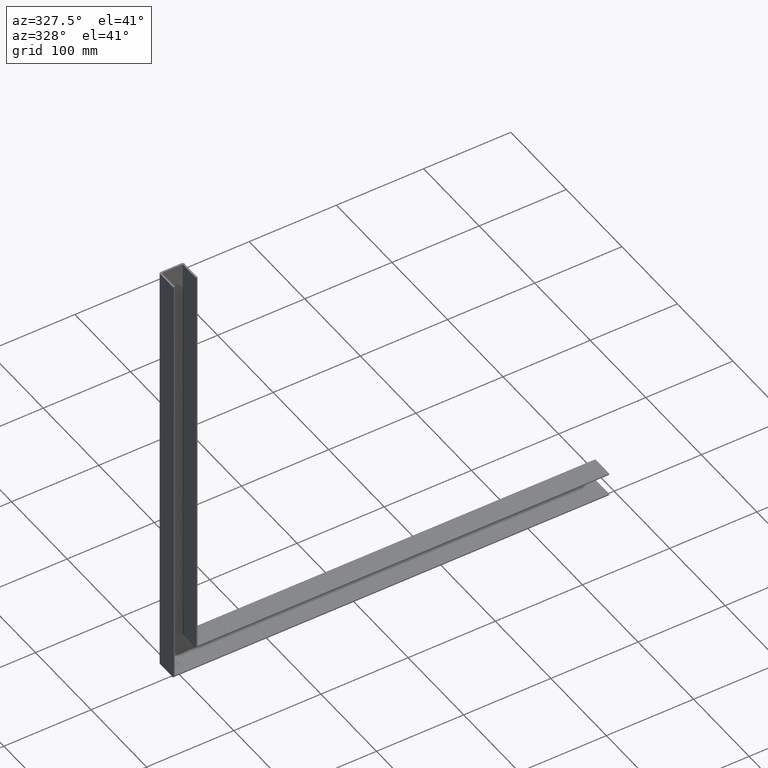
[diagram: clean part render]
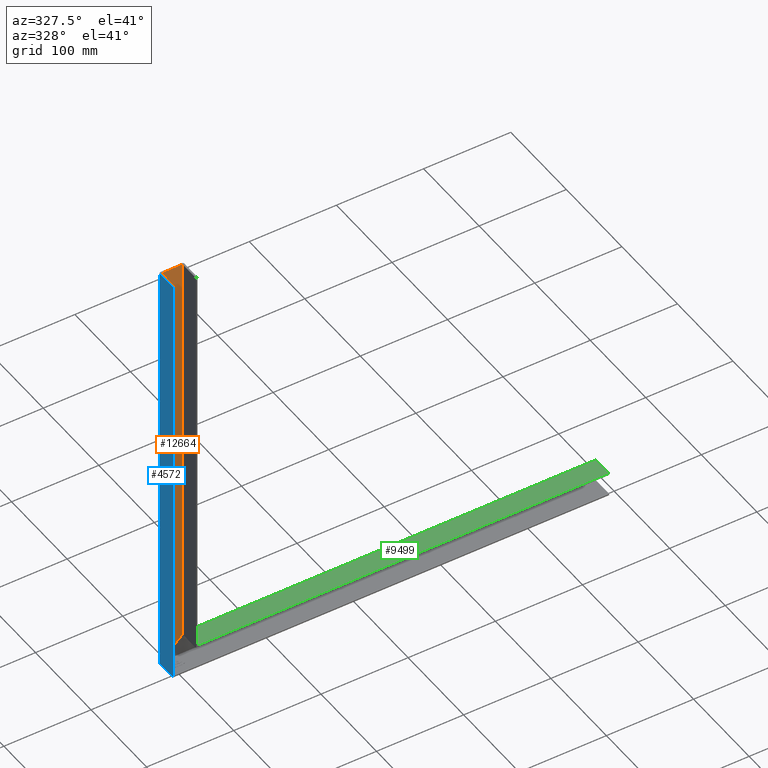
[diagram: same view with three faces highlighted in distinct colors, each labeled with its STEP entity id]
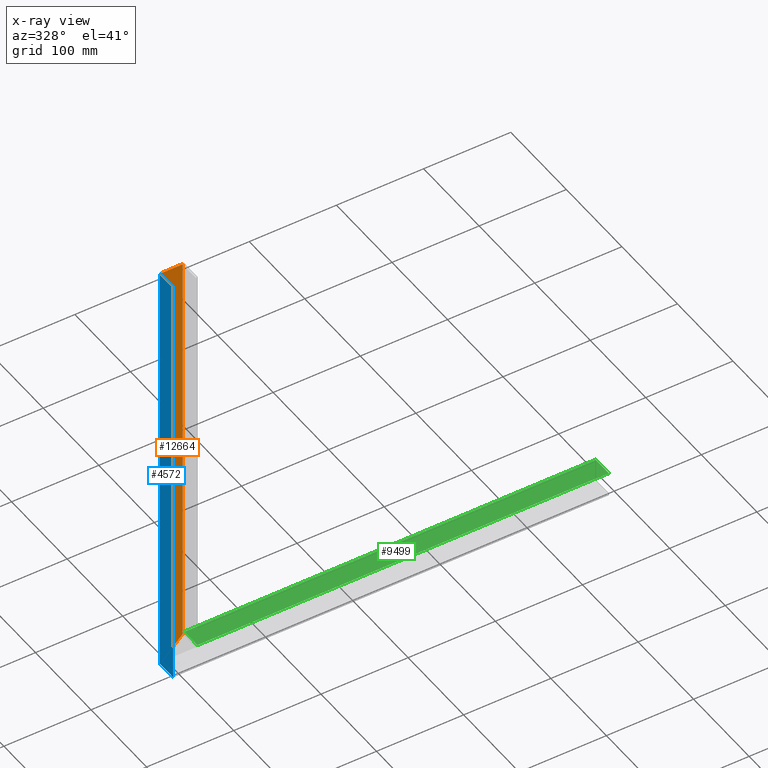
[diagram: x-ray of the same camera — body ghosted, the three highlighted faces saturated]
A machine part, auxiliary view with three faces highlighted in distinct colors.
The next image is the same camera in x-ray (body ghosted, the three faces saturated) — at least one of them is partly hidden behind the body in this view.
Their STEP definitions:

[orange] entity #12664 — the highlighted planar face has unit normal (-0, 1, 0).
#157 = DIRECTION ( 'NONE',  ( 0.000000000000000000, 0.000000000000000000, -1.000000000000000000 ) ) ;
#811 = CARTESIAN_POINT ( 'NONE',  ( -11.99999999999999822, 11.00000000000000000, 0.000000000000000000 ) ) ;
#1102 = VERTEX_POINT ( 'NONE', #2468 ) ;
#1846 = ORIENTED_EDGE ( 'NONE', *, *, #11872, .T. ) ;
#2468 = CARTESIAN_POINT ( 'NONE',  ( 12.00000000000000000, 11.00000000000000000, 0.000000000000000000 ) ) ;
#2851 = LINE ( 'NONE', #6671, #4793 ) ;
#2876 = EDGE_CURVE ( 'NONE', #15074, #7901, #13920, .T. ) ;
#2889 = FACE_OUTER_BOUND ( 'NONE', #11126, .T. ) ;
#3077 = ORIENTED_EDGE ( 'NONE', *, *, #15303, .F. ) ;
#3409 = EDGE_CURVE ( 'NONE', #9310, #1102, #9423, .T. ) ;
#3436 = DIRECTION ( 'NONE',  ( -0.000000000000000000, 1.000000000000000000, 0.000000000000000000 ) ) ;
#4767 = LINE ( 'NONE', #12376, #6870 ) ;
#4793 = VECTOR ( 'NONE', #13440, 1000.000000000000000 ) ;
#4894 = DIRECTION ( 'NONE',  ( 0.000000000000000000, -0.000000000000000000, 1.000000000000000000 ) ) ;
#5503 = DIRECTION ( 'NONE',  ( 1.000000000000000000, 0.000000000000000000, 0.000000000000000000 ) ) ;
#6671 = CARTESIAN_POINT ( 'NONE',  ( 12.00000000000000000, 11.00000000000000000, 0.000000000000000000 ) ) ;
#6870 = VECTOR ( 'NONE', #157, 1000.000000000000000 ) ;
#7252 = CARTESIAN_POINT ( 'NONE',  ( 236.9999999999999716, 11.00000000000000000, -248.9999999999999716 ) ) ;
#7344 = CARTESIAN_POINT ( 'NONE',  ( -11.99999999999999822, 11.00000000000000000, 0.000000000000000000 ) ) ;
#7901 = VERTEX_POINT ( 'NONE', #14173 ) ;
#7954 = VECTOR ( 'NONE', #9990, 1000.000000000000114 ) ;
#8900 = AXIS2_PLACEMENT_3D ( 'NONE', #811, #3436, #4894 ) ;
#9310 = VERTEX_POINT ( 'NONE', #7344 ) ;
#9423 = LINE ( 'NONE', #9655, #15620 ) ;
#9655 = CARTESIAN_POINT ( 'NONE',  ( -11.99999999999999822, 11.00000000000000000, 0.000000000000000000 ) ) ;
#9990 = DIRECTION ( 'NONE',  ( -0.7071067811865474617, 0.000000000000000000, -0.7071067811865474617 ) ) ;
#11126 = EDGE_LOOP ( 'NONE', ( #3077, #11685, #1846, #17403 ) ) ;
#11685 = ORIENTED_EDGE ( 'NONE', *, *, #3409, .F. ) ;
#11872 = EDGE_CURVE ( 'NONE', #9310, #7901, #4767, .T. ) ;
#12376 = CARTESIAN_POINT ( 'NONE',  ( -11.99999999999999822, 11.00000000000000000, 0.000000000000000000 ) ) ;
#12664 = ADVANCED_FACE ( 'NONE', ( #2889 ), #13030, .F. ) ;
#13030 = PLANE ( 'NONE',  #8900 ) ;
#13440 = DIRECTION ( 'NONE',  ( 0.000000000000000000, 0.000000000000000000, -1.000000000000000000 ) ) ;
#13881 = CARTESIAN_POINT ( 'NONE',  ( 12.00000000000000000, 11.00000000000000000, -473.9999999999999432 ) ) ;
#13920 = LINE ( 'NONE', #7252, #7954 ) ;
#14173 = CARTESIAN_POINT ( 'NONE',  ( -12.00000000000002132, 11.00000000000000000, -497.9999999999999432 ) ) ;
#15074 = VERTEX_POINT ( 'NONE', #13881 ) ;
#15303 = EDGE_CURVE ( 'NONE', #1102, #15074, #2851, .T. ) ;
#15620 = VECTOR ( 'NONE', #5503, 1000.000000000000000 ) ;
#17403 = ORIENTED_EDGE ( 'NONE', *, *, #2876, .F. ) ;

[blue] entity #4572 — the highlighted planar face has unit normal (1, -0, 0).
#259 = VECTOR ( 'NONE', #12336, 1000.000000000000000 ) ;
#905 = VECTOR ( 'NONE', #1966, 1000.000000000000000 ) ;
#939 = CARTESIAN_POINT ( 'NONE',  ( -14.00000000000000533, -12.49999999999999822, -500.0000000000000000 ) ) ;
#1825 = LINE ( 'NONE', #12440, #12690 ) ;
#1966 = DIRECTION ( 'NONE',  ( 0.000000000000000000, 0.000000000000000000, -1.000000000000000000 ) ) ;
#2177 = EDGE_CURVE ( 'NONE', #3176, #8936, #2619, .T. ) ;
#2619 = LINE ( 'NONE', #5931, #905 ) ;
#3176 = VERTEX_POINT ( 'NONE', #15370 ) ;
#3979 = VERTEX_POINT ( 'NONE', #9113 ) ;
#4477 = CARTESIAN_POINT ( 'NONE',  ( -14.00000000000000000, -12.49999999999999822, 0.000000000000000000 ) ) ;
#4572 = ADVANCED_FACE ( 'NONE', ( #11969 ), #15563, .F. ) ;
#5488 = ORIENTED_EDGE ( 'NONE', *, *, #2177, .F. ) ;
#5931 = CARTESIAN_POINT ( 'NONE',  ( -14.00000000000000000, -12.49999999999999822, 0.000000000000000000 ) ) ;
#6247 = CARTESIAN_POINT ( 'NONE',  ( -13.99999999999999822, 11.00000000000000000, 0.000000000000000000 ) ) ;
#7231 = EDGE_CURVE ( 'NONE', #3979, #15331, #11004, .T. ) ;
#8936 = VERTEX_POINT ( 'NONE', #939 ) ;
#9113 = CARTESIAN_POINT ( 'NONE',  ( -13.99999999999999822, 11.00000000000000000, 0.000000000000000000 ) ) ;
#9267 = ORIENTED_EDGE ( 'NONE', *, *, #12852, .F. ) ;
#9653 = LINE ( 'NONE', #14889, #259 ) ;
#11004 = LINE ( 'NONE', #6247, #14165 ) ;
#11408 = DIRECTION ( 'NONE',  ( 1.000000000000000000, -7.381802025433220315E-17, 0.000000000000000000 ) ) ;
#11918 = CARTESIAN_POINT ( 'NONE',  ( -14.00000000000000533, 11.00000000000000000, -500.0000000000000000 ) ) ;
#11969 = FACE_OUTER_BOUND ( 'NONE', #12974, .T. ) ;
#12336 = DIRECTION ( 'NONE',  ( 7.381802025433220315E-17, 1.000000000000000000, 7.381802025433220315E-17 ) ) ;
#12440 = CARTESIAN_POINT ( 'NONE',  ( -14.00000000000000000, -12.49999999999999822, 0.000000000000000000 ) ) ;
#12625 = DIRECTION ( 'NONE',  ( 7.381802025433220315E-17, 1.000000000000000000, 0.000000000000000000 ) ) ;
#12690 = VECTOR ( 'NONE', #16493, 1000.000000000000000 ) ;
#12852 = EDGE_CURVE ( 'NONE', #3979, #3176, #1825, .T. ) ;
#12974 = EDGE_LOOP ( 'NONE', ( #5488, #9267, #13325, #14416 ) ) ;
#13040 = AXIS2_PLACEMENT_3D ( 'NONE', #4477, #11408, #12625 ) ;
#13325 = ORIENTED_EDGE ( 'NONE', *, *, #7231, .T. ) ;
#14165 = VECTOR ( 'NONE', #14275, 1000.000000000000000 ) ;
#14275 = DIRECTION ( 'NONE',  ( 0.000000000000000000, 0.000000000000000000, -1.000000000000000000 ) ) ;
#14416 = ORIENTED_EDGE ( 'NONE', *, *, #17108, .F. ) ;
#14889 = CARTESIAN_POINT ( 'NONE',  ( -14.00000000000000000, -12.49999999999996270, -500.0000000000000000 ) ) ;
#15331 = VERTEX_POINT ( 'NONE', #11918 ) ;
#15370 = CARTESIAN_POINT ( 'NONE',  ( -14.00000000000000000, -12.49999999999999822, 0.000000000000000000 ) ) ;
#15563 = PLANE ( 'NONE',  #13040 ) ;
#16493 = DIRECTION ( 'NONE',  ( -7.381802025433221547E-17, -1.000000000000000000, 0.000000000000000000 ) ) ;
#17108 = EDGE_CURVE ( 'NONE', #8936, #15331, #9653, .T. ) ;

[green] entity #9499 — the highlighted planar face has unit normal (0, -0, -1).
#415 = DIRECTION ( 'NONE',  ( 1.000000000000000000, 0.000000000000000000, 0.000000000000000000 ) ) ;
#890 = CARTESIAN_POINT ( 'NONE',  ( 486.0000000000000000, 11.00000000000000355, -472.0000000000000000 ) ) ;
#903 = ORIENTED_EDGE ( 'NONE', *, *, #16906, .F. ) ;
#924 = VERTEX_POINT ( 'NONE', #10687 ) ;
#1147 = LINE ( 'NONE', #4264, #16733 ) ;
#1162 = LINE ( 'NONE', #1682, #15249 ) ;
#1682 = CARTESIAN_POINT ( 'NONE',  ( -15.50000000000001421, -12.49999999999999467, -472.0000000000000000 ) ) ;
#3658 = LINE ( 'NONE', #890, #6902 ) ;
#3901 = CARTESIAN_POINT ( 'NONE',  ( -15.50000000000001421, 11.00000000000000355, -472.0000000000000000 ) ) ;
#4264 = CARTESIAN_POINT ( 'NONE',  ( 13.99999999999999822, 10.99999999999989875, -471.9999999999999432 ) ) ;
#4405 = VERTEX_POINT ( 'NONE', #12291 ) ;
#4992 = ORIENTED_EDGE ( 'NONE', *, *, #5396, .T. ) ;
#5227 = CARTESIAN_POINT ( 'NONE',  ( 14.00000000000000711, -12.49999999999999467, -472.0000000000000000 ) ) ;
#5356 = DIRECTION ( 'NONE',  ( 0.000000000000000000, -2.214540607629966587E-16, -1.000000000000000000 ) ) ;
#5396 = EDGE_CURVE ( 'NONE', #924, #17083, #3658, .T. ) ;
#6902 = VECTOR ( 'NONE', #17416, 1000.000000000000000 ) ;
#7321 = LINE ( 'NONE', #3901, #15403 ) ;
#7725 = EDGE_LOOP ( 'NONE', ( #11229, #16382, #4992, #903 ) ) ;
#7913 = PLANE ( 'NONE',  #15346 ) ;
#8111 = VERTEX_POINT ( 'NONE', #5227 ) ;
#9499 = ADVANCED_FACE ( 'NONE', ( #11998 ), #7913, .F. ) ;
#10687 = CARTESIAN_POINT ( 'NONE',  ( 486.0000000000000000, -12.49999999999999467, -472.0000000000000000 ) ) ;
#10721 = DIRECTION ( 'NONE',  ( 0.000000000000000000, 1.000000000000000000, -2.214540607629966587E-16 ) ) ;
#11229 = ORIENTED_EDGE ( 'NONE', *, *, #11769, .T. ) ;
#11769 = EDGE_CURVE ( 'NONE', #4405, #8111, #1147, .T. ) ;
#11998 = FACE_OUTER_BOUND ( 'NONE', #7725, .T. ) ;
#12291 = CARTESIAN_POINT ( 'NONE',  ( 14.00000000000000711, 11.00000000000000355, -472.0000000000000000 ) ) ;
#13215 = DIRECTION ( 'NONE',  ( 1.000000000000000000, 0.000000000000000000, 0.000000000000000000 ) ) ;
#13245 = EDGE_CURVE ( 'NONE', #8111, #924, #1162, .T. ) ;
#13864 = DIRECTION ( 'NONE',  ( 2.214540607629966094E-16, -1.000000000000000000, 2.214540607629966094E-16 ) ) ;
#15249 = VECTOR ( 'NONE', #415, 1000.000000000000000 ) ;
#15346 = AXIS2_PLACEMENT_3D ( 'NONE', #17448, #5356, #10721 ) ;
#15403 = VECTOR ( 'NONE', #13215, 1000.000000000000000 ) ;
#16382 = ORIENTED_EDGE ( 'NONE', *, *, #13245, .T. ) ;
#16733 = VECTOR ( 'NONE', #13864, 1000.000000000000000 ) ;
#16906 = EDGE_CURVE ( 'NONE', #4405, #17083, #7321, .T. ) ;
#17083 = VERTEX_POINT ( 'NONE', #17641 ) ;
#17416 = DIRECTION ( 'NONE',  ( -1.356015033357936546E-32, 1.000000000000000000, -2.214540607629966587E-16 ) ) ;
#17448 = CARTESIAN_POINT ( 'NONE',  ( -15.50000000000001421, 11.00000000000000355, -472.0000000000000000 ) ) ;
#17641 = CARTESIAN_POINT ( 'NONE',  ( 486.0000000000000000, 11.00000000000000355, -472.0000000000000000 ) ) ;